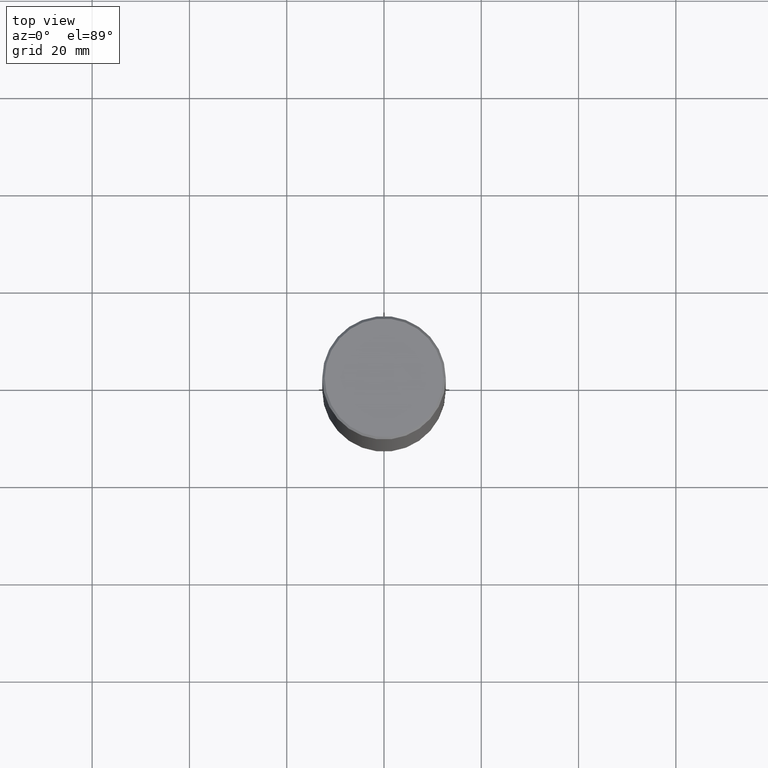
[diagram: clean part render]
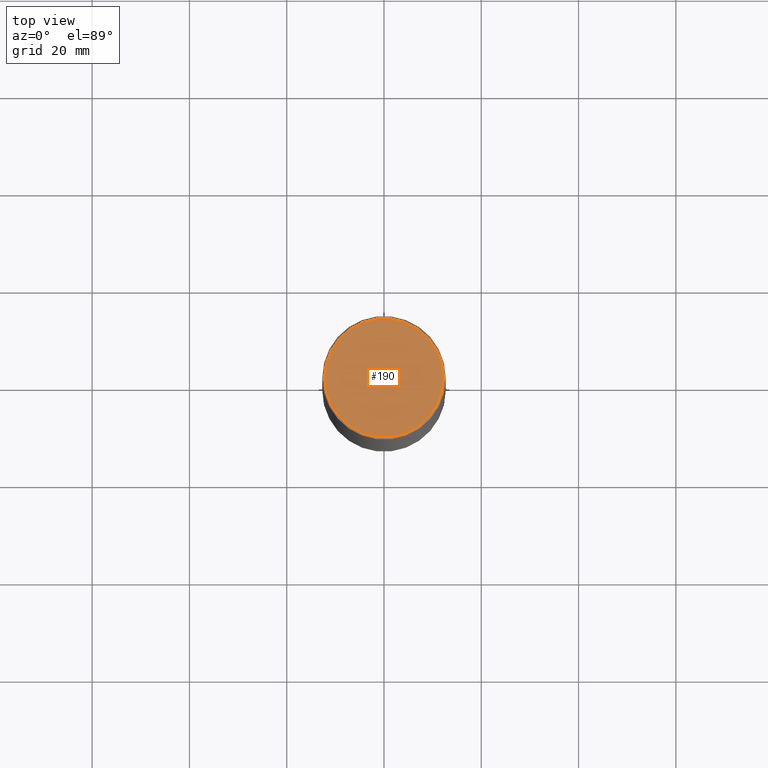
[diagram: same view with one face highlighted and labeled with its STEP entity id]
A machine part, top view. The second image highlights one B-rep face of the part: STEP entity #190.
In plain terms, the highlighted planar face has unit normal (0, -0, -1).
Its self-contained STEP definition (entity closure, byte-faithful):
#7 = PLANE ( 'NONE',  #264 ) ;
#16 = CARTESIAN_POINT ( 'NONE',  ( 3.351822085289407153E-15, 0.4799999999999999267, -1.616151867783303914E-15 ) ) ;
#29 = AXIS2_PLACEMENT_3D ( 'NONE', #359, #187, #390 ) ;
#35 = DIRECTION ( 'NONE',  ( 1.000000000000000000, -6.982962677686266711E-15, 4.874852205035277589E-29 ) ) ;
#66 = CARTESIAN_POINT ( 'NONE',  ( -2.922783960138615261E-45, 4.172960877065252270E-31, 1.195183497228115035E-16 ) ) ;
#115 = EDGE_CURVE ( 'NONE', #280, #309, #345, .T. ) ;
#133 = EDGE_CURVE ( 'NONE', #309, #280, #394, .T. ) ;
#165 = DIRECTION ( 'NONE',  ( 2.438088387897960049E-29, -3.491481338843145188E-15, -1.000000000000000000 ) ) ;
#187 = DIRECTION ( 'NONE',  ( -2.445468806185136597E-29, 3.491481338843145583E-15, 1.000000000000000000 ) ) ;
#190 = ADVANCED_FACE ( 'NONE', ( #403 ), #7, .F. ) ;
#191 = DIRECTION ( 'NONE',  ( -2.445468806185136597E-29, 3.491481338843145583E-15, 1.000000000000000000 ) ) ;
#207 = EDGE_LOOP ( 'NONE', ( #352, #259 ) ) ;
#259 = ORIENTED_EDGE ( 'NONE', *, *, #133, .T. ) ;
#264 = AXIS2_PLACEMENT_3D ( 'NONE', #16, #165, #367 ) ;
#269 = CARTESIAN_POINT ( 'NONE',  ( -0.4799999999999999267, 3.386736898677839197E-15, 1.195183497227879609E-16 ) ) ;
#280 = VERTEX_POINT ( 'NONE', #269 ) ;
#309 = VERTEX_POINT ( 'NONE', #327 ) ;
#327 = CARTESIAN_POINT ( 'NONE',  ( 0.4799999999999999267, -3.396558832296482099E-15, 1.195183497228351200E-16 ) ) ;
#345 = CIRCLE ( 'NONE', #29, 0.4799999999999999267 ) ;
#352 = ORIENTED_EDGE ( 'NONE', *, *, #115, .T. ) ;
#359 = CARTESIAN_POINT ( 'NONE',  ( -2.922783960138615261E-45, 4.172960877065252270E-31, 1.195183497228115035E-16 ) ) ;
#367 = DIRECTION ( 'NONE',  ( -1.000000000000000000, 6.982962677686265922E-15, -4.876176775795935793E-29 ) ) ;
#390 = DIRECTION ( 'NONE',  ( 1.000000000000000000, -6.982962677686266711E-15, 4.874852205035277589E-29 ) ) ;
#394 = CIRCLE ( 'NONE', #404, 0.4799999999999999267 ) ;
#403 = FACE_OUTER_BOUND ( 'NONE', #207, .T. ) ;
#404 = AXIS2_PLACEMENT_3D ( 'NONE', #66, #191, #35 ) ;